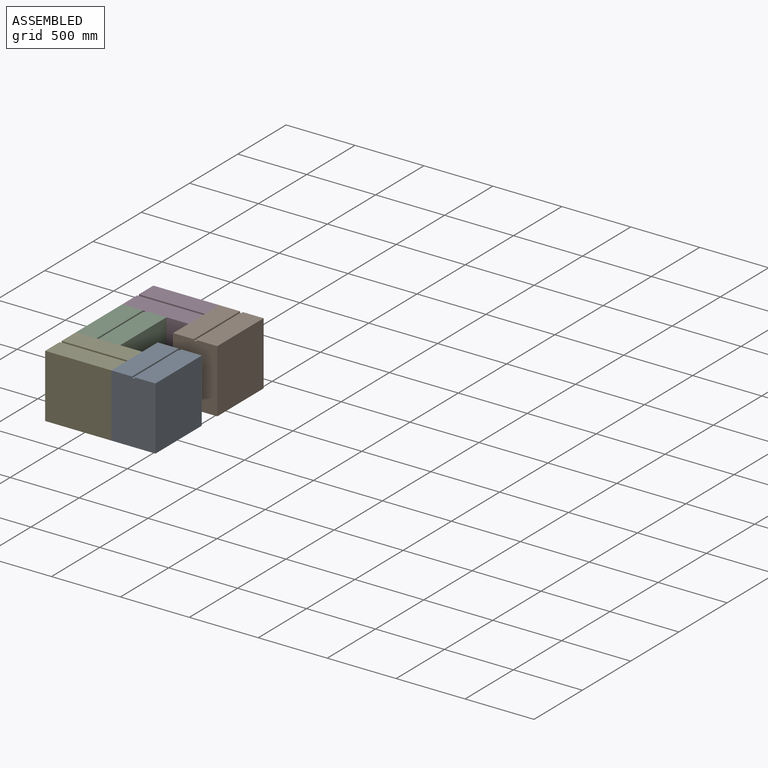
[diagram: assembled view]
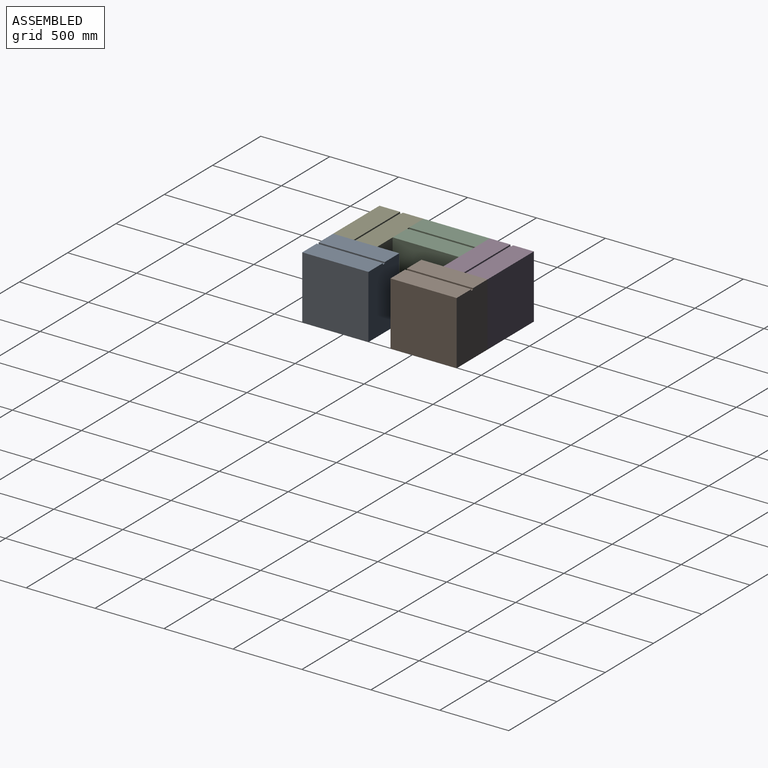
[diagram: assembled view, second angle]
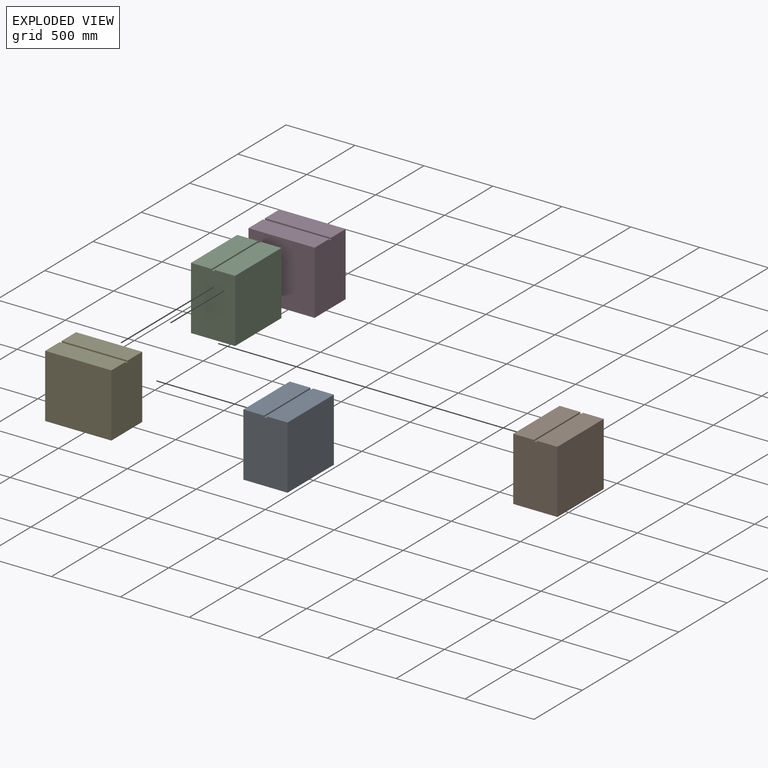
[diagram: exploded view]
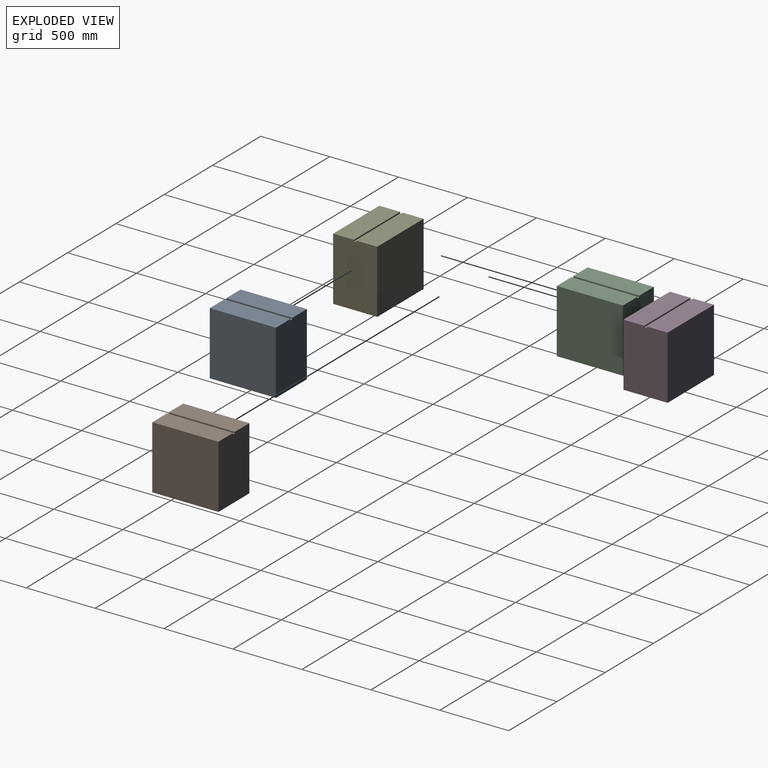
[diagram: exploded view, second angle]
ASSEMBLY  parts=5 mates=4
PART A: 10 faces, bbox 480x320x460 mm
  f0: plane 480x150mm, normal (0,0,1), area 72000mm2, adj f1,f2,f3,f8
  f1: plane 460x320mm, normal (-1,0,0), area 147000mm2, adj f0,f3,f4,f5,f6,f7,f8,f9
  f2: plane 460x320mm, normal (1,0,0), area 147000mm2, adj f0,f3,f4,f5,f6,f7,f8,f9
  f3: plane 480x460mm, normal (0,-1,0), area 220800mm2, adj f0,f1,f2,f4
  f4: plane 480x320mm, normal (0,0,-1), area 153600mm2, adj f1,f2,f3,f5
  f5: plane 480x460mm, normal (0,1,0), area 220800mm2, adj f1,f2,f4,f6
  f6: plane 480x150mm, normal (0,0,1), area 72000mm2, adj f1,f2,f5,f7
  f7: plane 480x10mm, normal (0,-1,0), area 4800mm2, adj f1,f2,f6,f9
  f8: plane 480x10mm, normal (0,1,0), area 4800mm2, adj f0,f1,f2,f9
  f9: plane 480x20mm, normal (0,0,1), area 9600mm2, adj f1,f2,f7,f8
PART B: same geometry as A
PART C: same geometry as A
PART D: same geometry as A
PART E: same geometry as A
PLACE A rot(axis=(0,0,1),90deg) t=(881.53,-288.84,419.71)mm
PLACE B rot(axis=(0,0,-1),90deg) t=(882.74,-128.84,419.71)mm
PLACE C rot(axis=(0,0,1),90deg) t=(401.53,31.16,419.71)mm
PLACE D t=(722.14,191.77,419.71)mm
PLACE E t=(722.14,-608.23,419.71)mm
MATE fastened A.f5 <-> E.f2  axis (-1,0,0) through (722.14,-768.84,743.27)mm
MATE fastened C.f2 <-> D.f3  axis (0,1,0) through (242.14,31.16,743.27)mm
MATE fastened B.f3 <-> D.f2  axis (-1,0,0) through (722.14,351.16,743.27)mm
MATE fastened E.f5 <-> C.f1  axis (0,1,0) through (242.14,-448.84,743.27)mm
